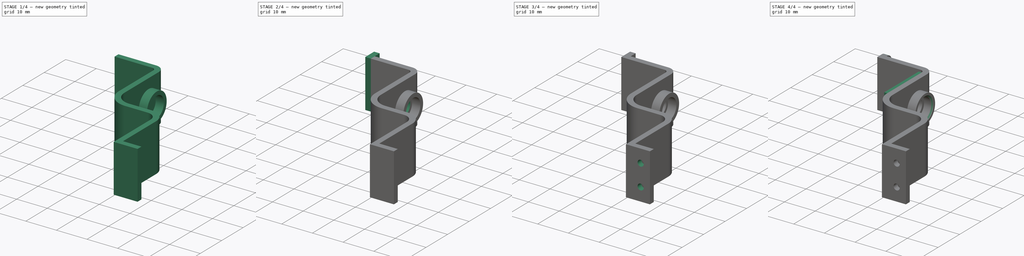
[diagram: build sequence overview — one tinted view per stage of 4, left to right]
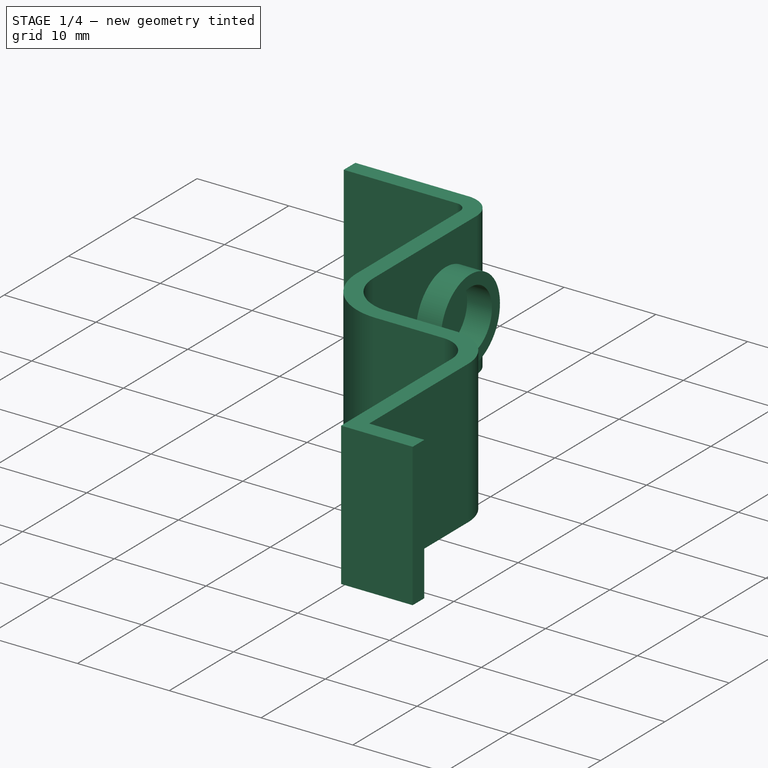
[diagram: stage 1 of 4 — iso view after this stage's code; geometry added in this stage tinted green]
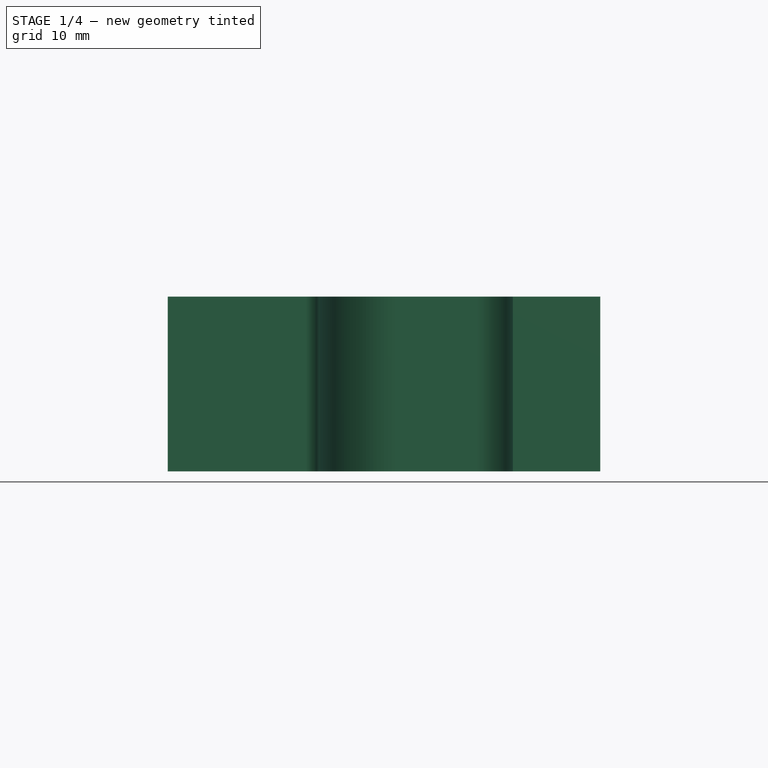
[diagram: stage 1 of 4 — front view after this stage's code; geometry added in this stage tinted green]
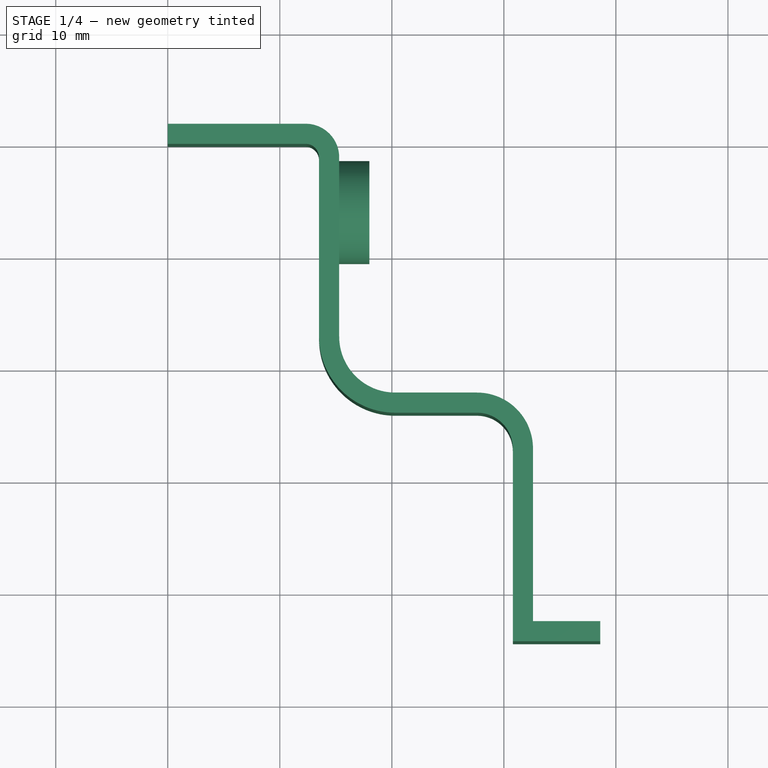
[diagram: stage 1 of 4 — top view after this stage's code; geometry added in this stage tinted green]
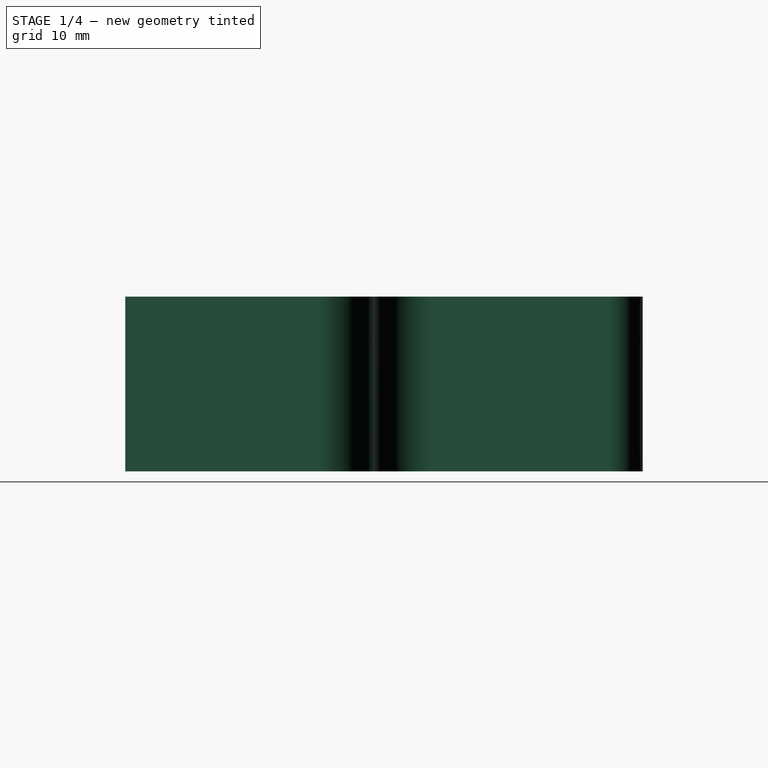
[diagram: stage 1 of 4 — right view after this stage's code; geometry added in this stage tinted green]
FCSTD DOCUMENT  (FreeCAD 0.16R4928 (Git))
Label: bearing_holder
License: All rights reserved
LicenseURL: http://en.wikipedia.org/wiki/All_rights_reserved
objects: Sketcher::SketchObject×9, PartDesign::Pad×5, PartDesign::Pocket×4, PartDesign::Fillet×1, PartDesign::Chamfer×1
note: 29 computed .brp shape members not serialized (recipe doc carries the construction recipe); baked Part::Feature solids carry a one-line shape summary decoded from their .brp

FEATURE [Sketcher::SketchObject] Sketch
  sketch-geometry (18):
    g0: LineSegment StartX=0 StartY=1.8 StartZ=0 EndX=0 EndY=0 EndZ=0
    g1: LineSegment StartX=0 StartY=1.8 StartZ=0 EndX=12.3 EndY=1.8 EndZ=0
    g2: ArcOfCircle CenterX=12.3 CenterY=-1.2 CenterZ=0 NormalX=0 NormalY=0 NormalZ=1 Radius=3 StartAngle=6.28318 EndAngle=7.85398
    g3: LineSegment StartX=15.3 StartY=-1.2 StartZ=0 EndX=15.3 EndY=-17.2 EndZ=0
    g4: LineSegment StartX=0 StartY=0 StartZ=0 EndX=12.3 EndY=0 EndZ=0
    g5: LineSegment StartX=13.5 StartY=-1.2 StartZ=0 EndX=13.5 EndY=-17.2 EndZ=0
    g6: ArcOfCircle CenterX=20.3 CenterY=-17.2 CenterZ=0 NormalX=0 NormalY=0 NormalZ=1 Radius=6.8 StartAngle=3.14159 EndAngle=4.71239
    g7: ArcOfCircle CenterX=20.3 CenterY=-17.2 CenterZ=0 NormalX=0 NormalY=0 NormalZ=1 Radius=5 StartAngle=3.14159 EndAngle=4.71239
    g8: LineSegment StartX=20.3 StartY=-22.2 StartZ=0 EndX=27.6 EndY=-22.2 EndZ=0
    g9: LineSegment StartX=20.3 StartY=-24 StartZ=0 EndX=27.6 EndY=-24 EndZ=0
    g10: ArcOfCircle CenterX=12.3 CenterY=-1.2 CenterZ=0 NormalX=0 NormalY=0 NormalZ=1 Radius=1.2 StartAngle=6.28318 EndAngle=7.85397
    g11: ArcOfCircle CenterX=27.6 CenterY=-27.2 CenterZ=0 NormalX=0 NormalY=0 NormalZ=1 Radius=5 StartAngle=2.952e-09 EndAngle=1.5708
    g12: ArcOfCircle CenterX=27.6 CenterY=-27.2 CenterZ=0 NormalX=0 NormalY=0 NormalZ=1 Radius=3.2 StartAngle=5.9938e-08 EndAngle=1.5708
    g13: LineSegment StartX=30.8 StartY=-27.2 StartZ=0 EndX=30.8 EndY=-44.4 EndZ=0
    g14: LineSegment StartX=32.6 StartY=-27.2 StartZ=0 EndX=32.6 EndY=-42.6 EndZ=0
    g15: LineSegment StartX=30.8 StartY=-44.4 StartZ=0 EndX=38.6 EndY=-44.4 EndZ=0
    g16: LineSegment StartX=32.6 StartY=-42.6 StartZ=0 EndX=38.6 EndY=-42.6 EndZ=0
    g17: LineSegment StartX=38.6 StartY=-42.6 StartZ=0 EndX=38.6 EndY=-44.4 EndZ=0
  constraints (56):
    c: Vertical(g0)
    c: Distance(g0) = 1.8
    c: Coincident(g1,g0)
    c: Horizontal(g1)
    c: Coincident(g2,g1)
    c: Coincident(g3,g2)
    c: Vertical(g3)
    c: Coincident(g4,g0)
    c: Horizontal(g4)
    c: Radius(g2) = 3
    c: Tangent(g2,g1)
    c: Coincident(g0,g-1)
    c: Vertical(g5)
    c: Coincident(g7,g6)
    c: Coincident(g7,g3)
    c: Tangent(g7,g3)
    c: Coincident(g6,g5)
    c: Horizontal(g8)
    c: Coincident(g8,g7)
    c: Coincident(g9,g6)
    c: Horizontal(g9)
    c: Tangent(g5,g6)
    c: Tangent(g3,g2)
    c: Tangent(g7,g8)
    c: Tangent(g6,g9)
    c: Coincident(g10,g4)
    c: Coincident(g10,g5)
    c: Tangent(g10,g5)
    c: Tangent(g4,g10)
    c: DistanceX(g0,g2) = 15.3
    c: DistanceY(g6,g1) = 25.8
    c: Coincident(g10,g2)
    c: Coincident(g11,g8)
    c: Coincident(g12,g11)
    c: Coincident(g12,g9)
    c: Coincident(g13,g12)
    c: Vertical(g14)
    c: Vertical(g13)
    c: Tangent(g12,g13)
    c: Tangent(g11,g14)
    c: Coincident(g14,g11)
    c: Tangent(g9,g12)
    c: Tangent(g11,g8)
    c: DistanceX(g5,g12) = 17.3
    c: Radius(g11) = 5
    c: Coincident(g15,g13)
    c: Horizontal(g15)
    c: Coincident(g16,g14)
    c: Horizontal(g16)
    c: Coincident(g17,g16)
    c: Coincident(g17,g15)
    c: Vertical(g17)
    c: Distance(g15) = 7.8
    c: Equal(g17,g0)
    c: DistanceY(g15,g8) = 22.2
    c: Radius(g7) = 5
FEATURE [PartDesign::Pad] Pad
  Length = 15.6
  Length2 = 100
  Sketch = -> Sketch
  Type = 0
FEATURE [Sketcher::SketchObject] Sketch001
  ExternalGeometry = -> [Pad]
  Placement = pos=(15.3,0,0) rot=(0.57735,0.57735,0.57735;2.0944rad)
  Support = -> Pad [Face2]
  sketch-geometry (4):
    g0: LineSegment [constr] StartX=1.8 StartY=15.6 StartZ=0 EndX=1.8 EndY=7.8 EndZ=0
    g1: LineSegment [constr] StartX=1.8 StartY=7.8 StartZ=0 EndX=1.8 EndY=0 EndZ=0
    g2: LineSegment [constr] StartX=1.8 StartY=7.8 StartZ=0 EndX=-6 EndY=7.8 EndZ=0
    g3: Circle CenterX=-6 CenterY=7.8 CenterZ=0 NormalX=0 NormalY=0 NormalZ=1 Radius=4.6
  constraints (10):
    c: Coincident(g0,g-3)
    c: Vertical(g0)
    c: Coincident(g1,g0)
    c: Coincident(g1,g-4)
    c: Equal(g0,g1)
    c: Coincident(g2,g0)
    c: Horizontal(g2)
    c: Distance(g2) = 7.8
    c: Radius(g3) = 4.6
    c: Coincident(g3,g2)
FEATURE [PartDesign::Pad] Pad001
  Length = 2.7
  Length2 = 100
  Sketch = -> Sketch001
  Type = 0
FEATURE [Sketcher::SketchObject] Sketch002
  ExternalGeometry = -> [Pad001]
  Placement = pos=(18,0,0) rot=(0.57735,0.57735,0.57735;2.0944rad)
  Support = -> Pad001 [Face22]
  sketch-geometry (1):
    g0: Circle CenterX=-6 CenterY=7.8 CenterZ=0 NormalX=0 NormalY=0 NormalZ=1 Radius=3.35
  constraints (2):
    c: Coincident(g0,g-3)
    c: Radius(g0) = 3.35
FEATURE [PartDesign::Pocket] Pocket
  Length = 0
  Sketch = -> Sketch002
  Type = 3
  UpToFace = -> Pad001 [Face2]
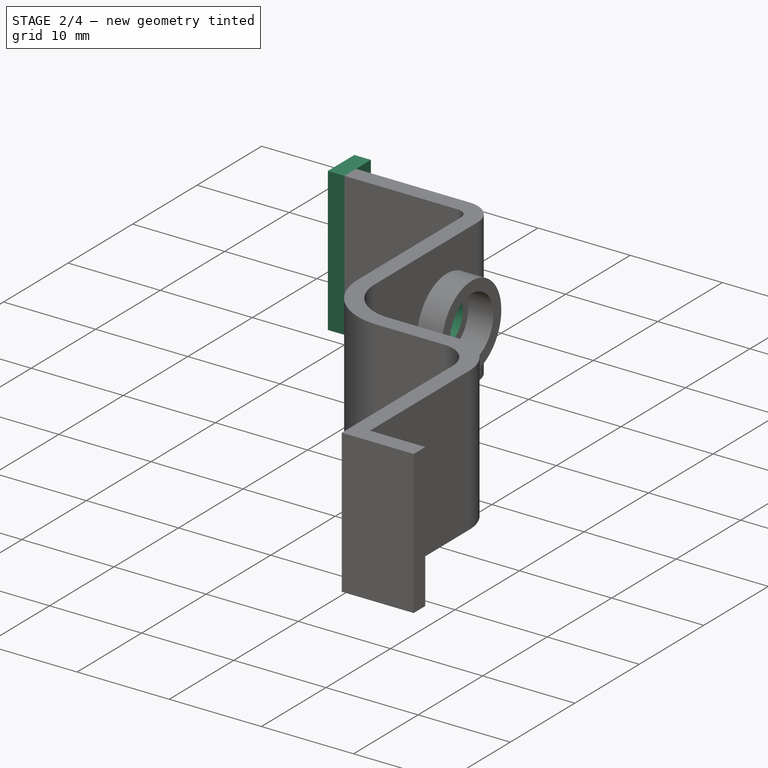
[diagram: stage 2 of 4 — iso view after this stage's code; geometry added in this stage tinted green]
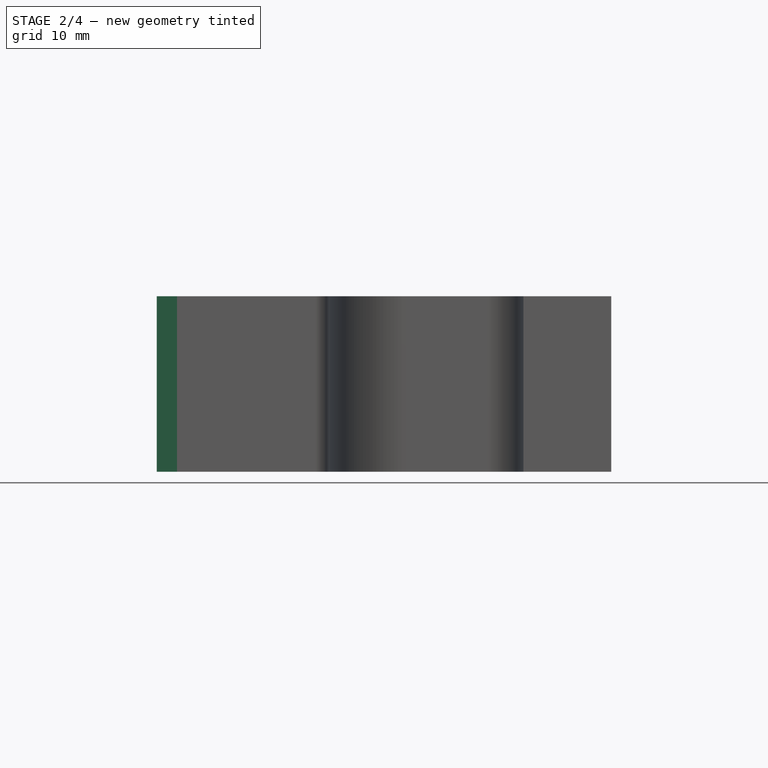
[diagram: stage 2 of 4 — front view after this stage's code; geometry added in this stage tinted green]
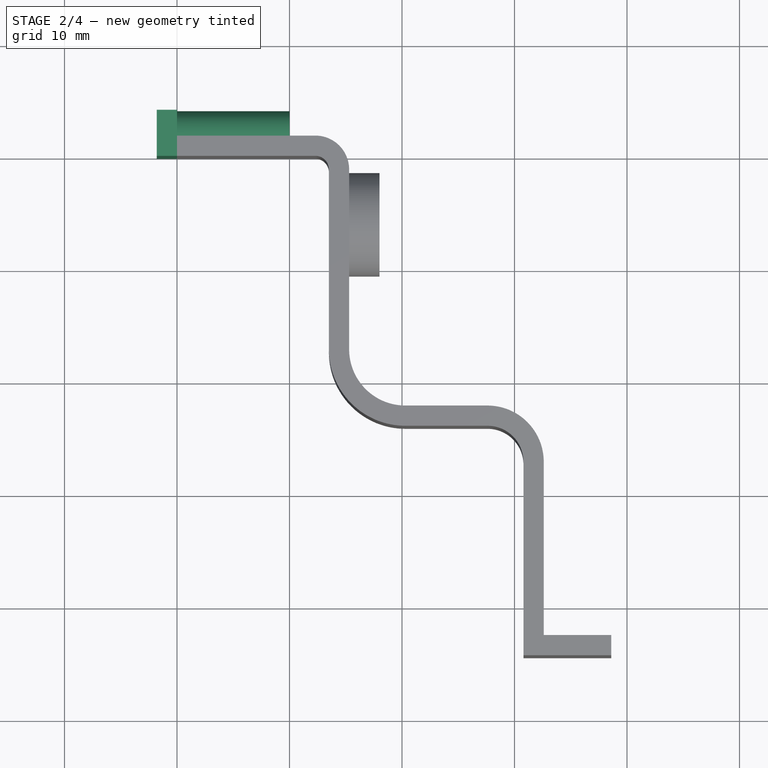
[diagram: stage 2 of 4 — top view after this stage's code; geometry added in this stage tinted green]
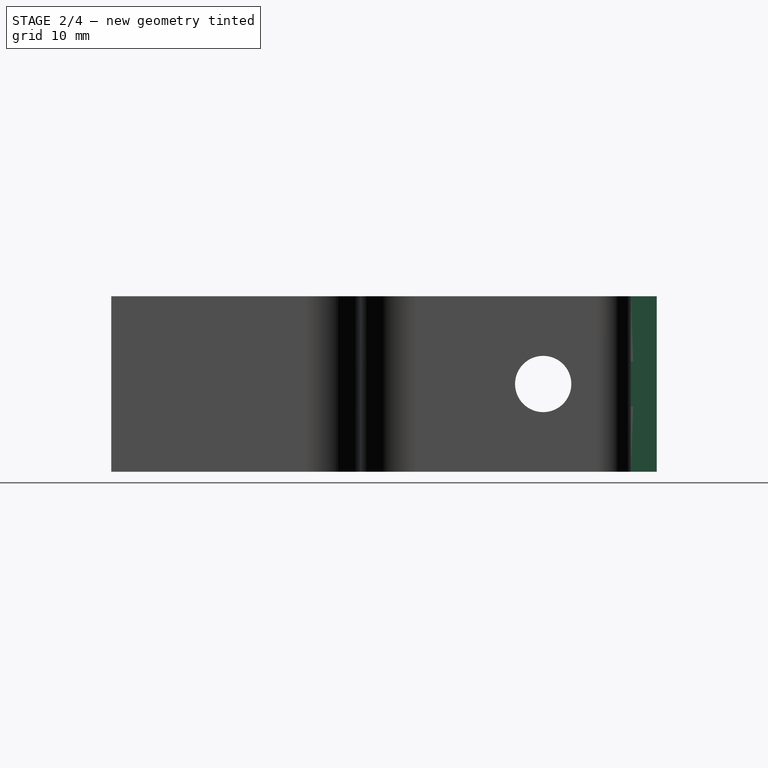
[diagram: stage 2 of 4 — right view after this stage's code; geometry added in this stage tinted green]
FEATURE [Sketcher::SketchObject] Sketch003
  ExternalGeometry = -> [Pocket]
  Placement = pos=(15.3,0,0) rot=(0.57735,0.57735,0.57735;2.0944rad)
  Support = -> Pocket [Face24]
  sketch-geometry (1):
    g0: Circle CenterX=-6 CenterY=7.8 CenterZ=0 NormalX=0 NormalY=0 NormalZ=1 Radius=2.5
  constraints (2):
    c: Coincident(g0,g-3)
    c: Radius(g0) = 2.5
FEATURE [PartDesign::Pocket] Pocket001
  Length = 5
  Sketch = -> Sketch003
  Type = 1
FEATURE [Sketcher::SketchObject] Sketch004
  ExternalGeometry = -> [Pocket001]
  Placement = pos=(0,0,0) rot=(0.57735,-0.57735,-0.57735;2.0944rad)
  Support = -> Pocket001 [Face10]
  sketch-geometry (4):
    g0: LineSegment StartX=0 StartY=0 StartZ=0 EndX=-4.1 EndY=0 EndZ=0
    g1: LineSegment StartX=-4.1 StartY=0 StartZ=0 EndX=-4.1 EndY=15.6 EndZ=0
    g2: LineSegment StartX=-4.1 StartY=15.6 StartZ=0 EndX=0 EndY=15.6 EndZ=0
    g3: LineSegment StartX=0 StartY=15.6 StartZ=0 EndX=0 EndY=0 EndZ=0
  constraints (11):
    c: Coincident(g0,g1)
    c: Coincident(g1,g2)
    c: Coincident(g2,g3)
    c: Coincident(g3,g0)
    c: Horizontal(g0)
    c: Horizontal(g2)
    c: Vertical(g1)
    c: Vertical(g3)
    c: Coincident(g0,g-1)
    c: PointOnObject(g-3,g2)
    c: DistanceX(g1,g2) = 4.1
FEATURE [PartDesign::Pad] Pad002
  Length = 1.8
  Length2 = 100
  Sketch = -> Sketch004
  Type = 0
FEATURE [Sketcher::SketchObject] Sketch005
  ExternalGeometry = -> [Pad002]
  Placement = pos=(0,0,0) rot=(0.57735,0.57735,0.57735;2.0944rad)
  Support = -> Pad002 [Face24]
  sketch-geometry (5):
    g0: LineSegment [constr] StartX=4.1 StartY=15.6 StartZ=0 EndX=4.1 EndY=7.8 EndZ=0
    g1: LineSegment [constr] StartX=4.1 StartY=7.8 StartZ=0 EndX=4.1 EndY=0 EndZ=0
    g2: LineSegment StartX=4.1 StartY=7.8 StartZ=0 EndX=2.1 EndY=7.8 EndZ=0
    g3: ArcOfCircle CenterX=2.1 CenterY=7.8 CenterZ=0 NormalX=0 NormalY=0 NormalZ=1 Radius=2 StartAngle=4.56182 EndAngle=8.00455
    g4: LineSegment StartX=1.8 StartY=5.82263 StartZ=0 EndX=1.8 EndY=9.77737 EndZ=0
  constraints (15):
    c: Coincident(g0,g-3)
    c: Vertical(g0)
    c: Coincident(g1,g-3)
    c: Vertical(g1)
    c: Coincident(g1,g0)
    c: Equal(g0,g1)
    c: Coincident(g2,g0)
    c: Horizontal(g2)
    c: Coincident(g3,g2)
    c: Vertical(g4)
    c: Coincident(g3,g4)
    c: Coincident(g3,g4)
    c: PointOnObject(g3,g-4)
    c: Tangent(g3,g-3)
    c: Radius(g3) = 2
FEATURE [PartDesign::Pad] Pad003
  Length = 10
  Length2 = 100
  Sketch = -> Sketch005
  Type = 0
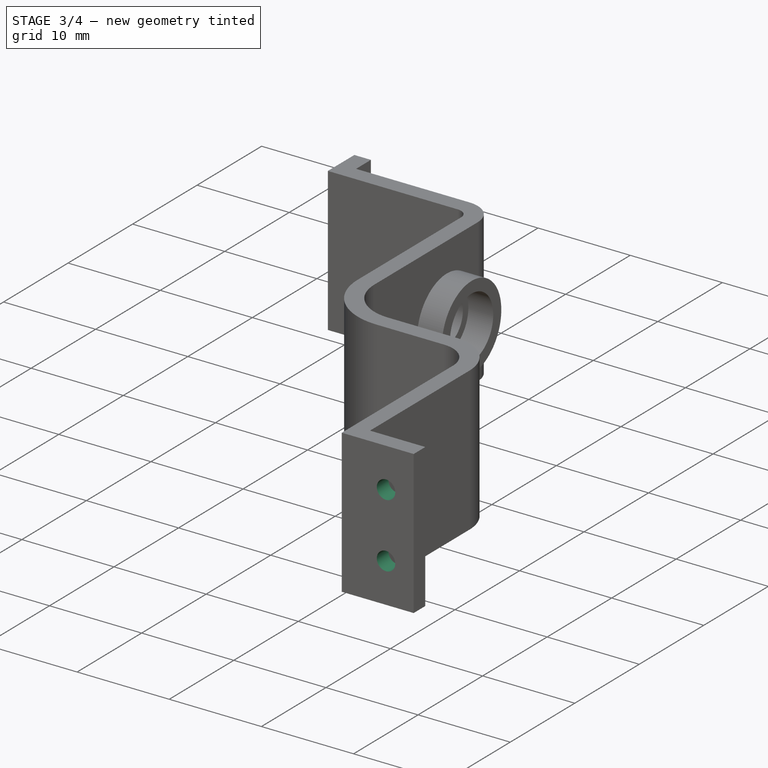
[diagram: stage 3 of 4 — iso view after this stage's code; geometry added in this stage tinted green]
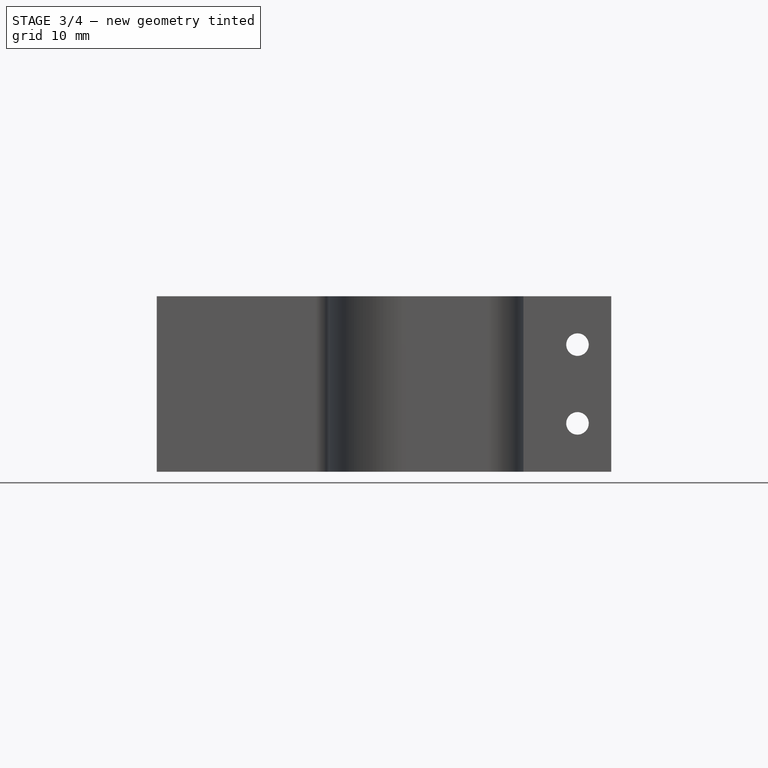
[diagram: stage 3 of 4 — front view after this stage's code; geometry added in this stage tinted green]
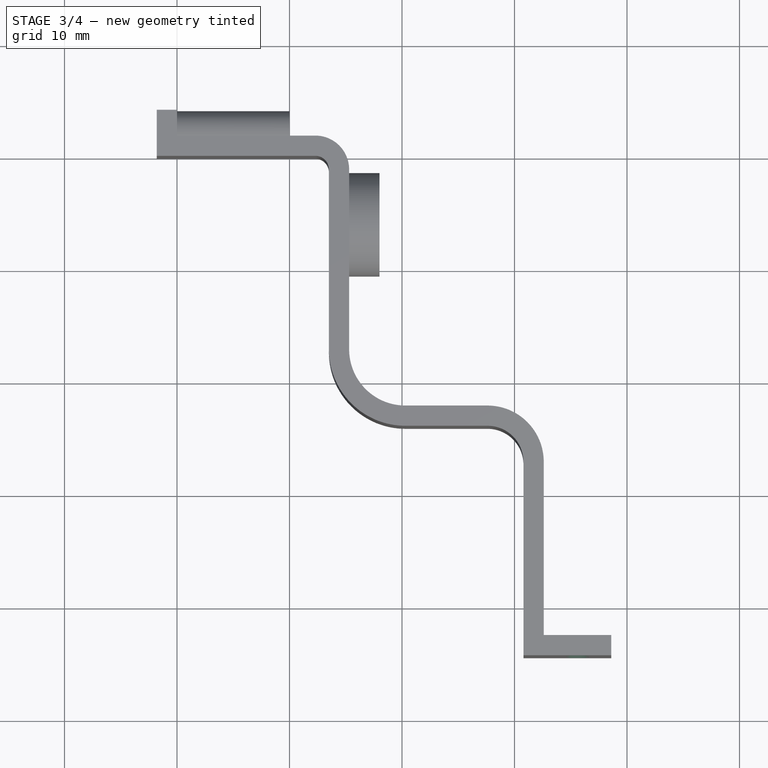
[diagram: stage 3 of 4 — top view after this stage's code; geometry added in this stage tinted green]
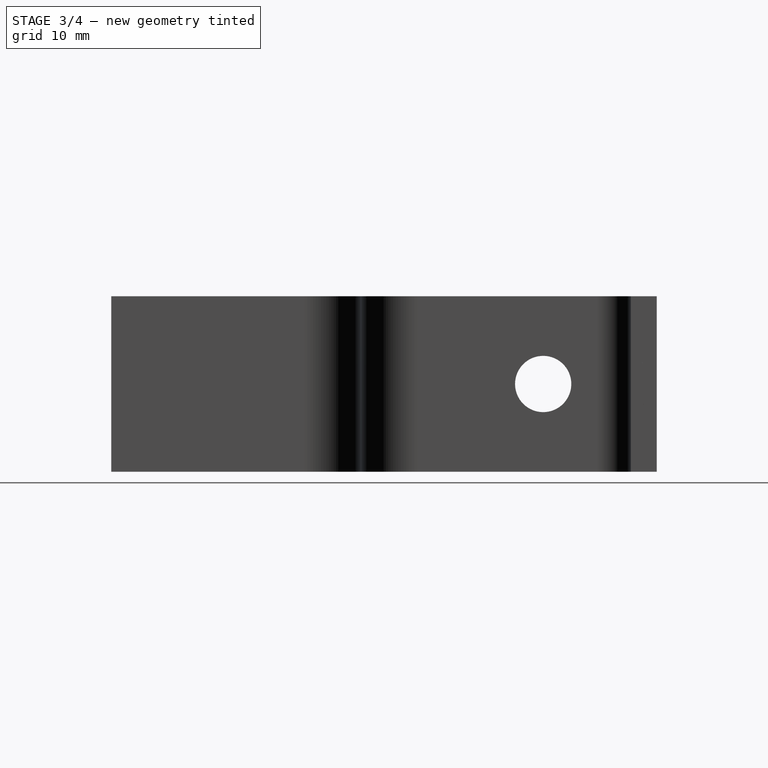
[diagram: stage 3 of 4 — right view after this stage's code; geometry added in this stage tinted green]
FEATURE [Sketcher::SketchObject] Sketch006
  ExternalGeometry = -> [Pad003]
  Placement = pos=(-1.8,0,0) rot=(0.57735,-0.57735,-0.57735;2.0944rad)
  Support = -> Pad003 [Face29]
  sketch-geometry (4):
    g0: LineSegment [constr] StartX=-4.1 StartY=15.6 StartZ=0 EndX=-4.1 EndY=7.8 EndZ=0
    g1: LineSegment [constr] StartX=-4.1 StartY=0 StartZ=0 EndX=-4.1 EndY=7.8 EndZ=0
    g2: LineSegment [constr] StartX=-4.1 StartY=7.8 StartZ=0 EndX=-2 EndY=7.8 EndZ=0
    g3: Circle CenterX=-2 CenterY=7.8 CenterZ=0 NormalX=0 NormalY=0 NormalZ=1 Radius=0.875
  constraints (11):
    c: Vertical(g0)
    c: Coincident(g1,g-4)
    c: Vertical(g1)
    c: Coincident(g1,g0)
    c: Equal(g1,g0)
    c: Coincident(g0,g-3)
    c: Coincident(g2,g0)
    c: Horizontal(g2)
    c: Coincident(g3,g2)
    c: Distance(g2) = 2.1
    c: Radius(g3) = 0.875
FEATURE [PartDesign::Pocket] Pocket002
  Length = 8
  Sketch = -> Sketch006
  Type = 0
FEATURE [Sketcher::SketchObject] Sketch007
  ExternalGeometry = -> [Pocket002]
  Placement = pos=(0,-44.4,0) rot=(1,0,0;1.5708rad)
  Support = -> Pocket002 [Face16]
  sketch-geometry (7):
    g0: LineSegment [constr] StartX=38.6 StartY=7.8 StartZ=0 EndX=35.6 EndY=7.8 EndZ=0
    g1: LineSegment StartX=38.6 StartY=7.8 StartZ=0 EndX=38.6 EndY=15.6 EndZ=0
    g2: LineSegment StartX=38.6 StartY=7.8 StartZ=0 EndX=38.6 EndY=0 EndZ=0
    g3: LineSegment [constr] StartX=35.6 StartY=7.8 StartZ=0 EndX=35.6 EndY=11.3 EndZ=0
    g4: LineSegment [constr] StartX=35.6 StartY=7.8 StartZ=0 EndX=35.6 EndY=4.3 EndZ=0
    g5: Circle CenterX=35.6 CenterY=11.3 CenterZ=0 NormalX=0 NormalY=0 NormalZ=1 Radius=1
    g6: Circle CenterX=35.6 CenterY=4.3 CenterZ=0 NormalX=0 NormalY=0 NormalZ=1 Radius=1
  constraints (19):
    c: Horizontal(g0)
    c: Coincident(g1,g0)
    c: Coincident(g1,g-3)
    c: Vertical(g1)
    c: Coincident(g2,g0)
    c: Coincident(g2,g-4)
    c: Equal(g2,g1)
    c: Coincident(g3,g0)
    c: Vertical(g3)
    c: Coincident(g4,g0)
    c: Vertical(g4)
    c: Equal(g4,g3)
    c: Coincident(g5,g3)
    c: Coincident(g6,g4)
    c: Equal(g6,g5)
    c: Equal(g3,g4)
    c: DistanceX(g0) = -3
    c: DistanceY(g3,g4) = -7
    c: Radius(g5) = 1
FEATURE [PartDesign::Pocket] Pocket003
  Length = 5
  Sketch = -> Sketch007
  Type = 1
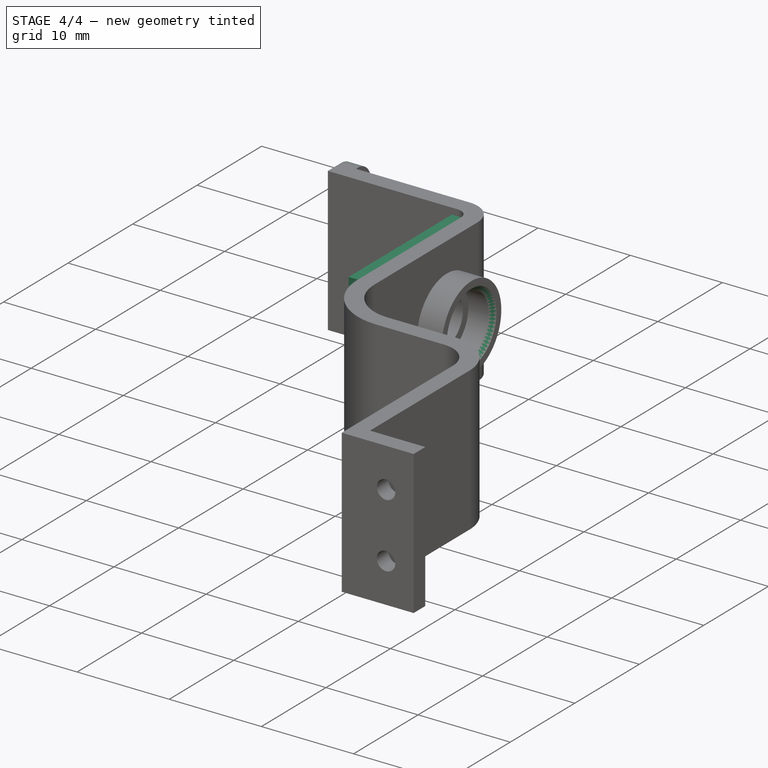
[diagram: stage 4 of 4 — iso view after this stage's code; geometry added in this stage tinted green]
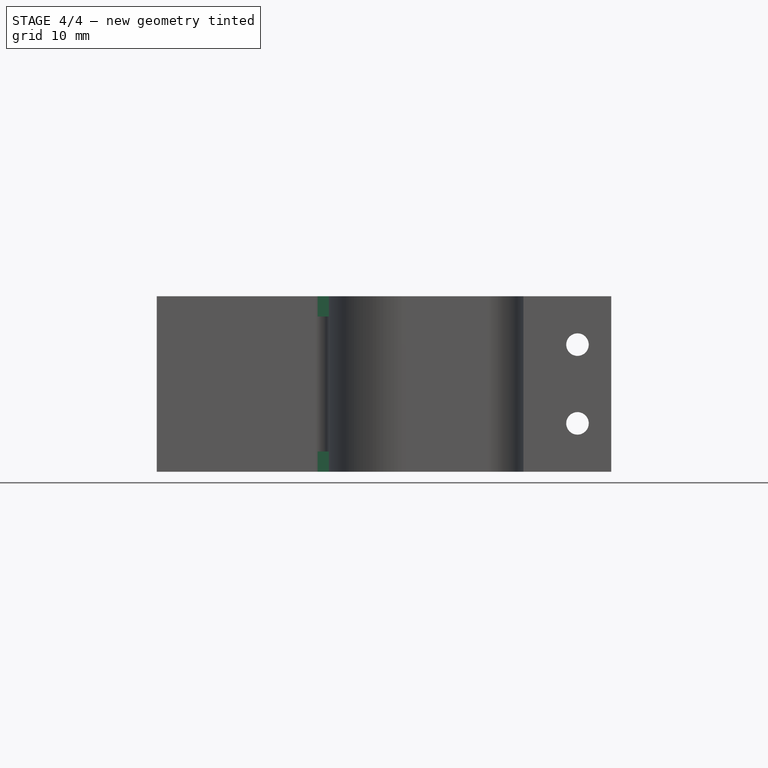
[diagram: stage 4 of 4 — front view after this stage's code; geometry added in this stage tinted green]
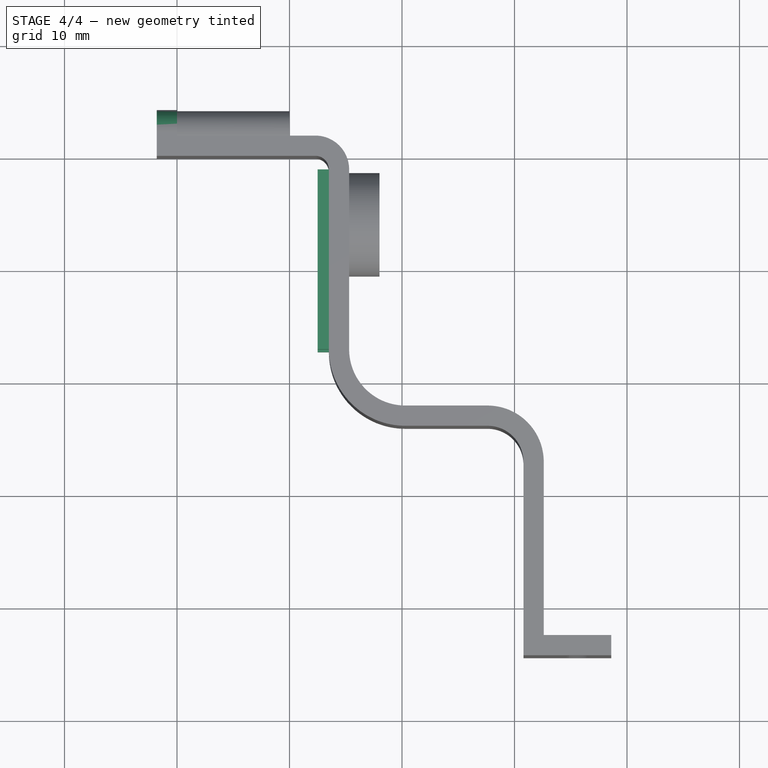
[diagram: stage 4 of 4 — top view after this stage's code; geometry added in this stage tinted green]
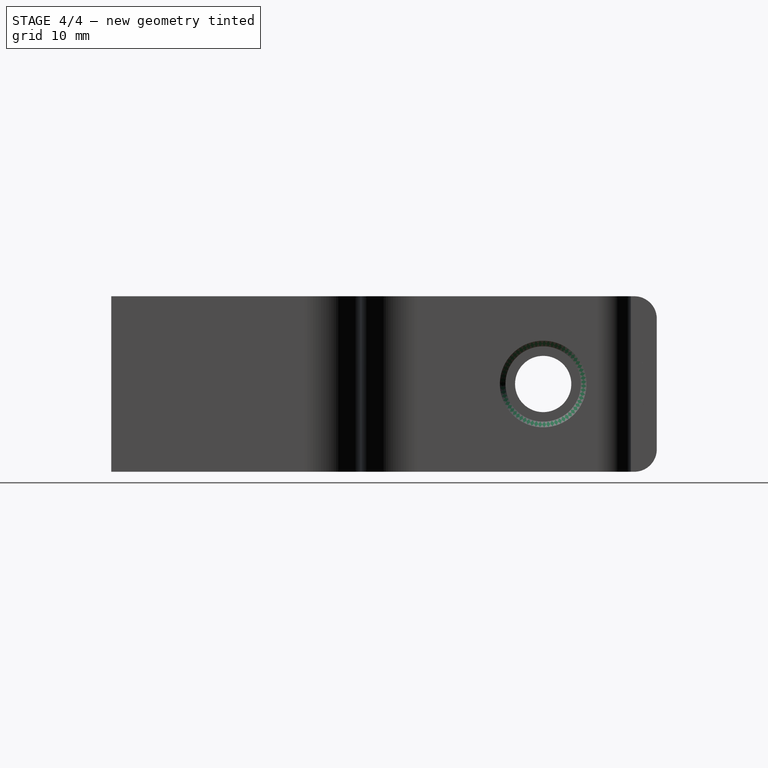
[diagram: stage 4 of 4 — right view after this stage's code; geometry added in this stage tinted green]
FEATURE [PartDesign::Fillet] Fillet
  Base = -> Pocket003 [Edge55,Edge71]
  Radius = 2
FEATURE [PartDesign::Chamfer] Chamfer
  Base = -> Fillet [Edge95]
  Size = 0.5
FEATURE [Sketcher::SketchObject] Sketch008
  ExternalGeometry = -> [Chamfer]
  Placement = pos=(13.5,0,0) rot=(0.57735,-0.57735,-0.57735;2.0944rad)
  Support = -> Chamfer [Face22]
  sketch-geometry (8):
    g0: LineSegment StartX=1.2 StartY=15.6 StartZ=0 EndX=17.2 EndY=15.6 EndZ=0
    g1: LineSegment StartX=17.2 StartY=15.6 StartZ=0 EndX=17.2 EndY=13.8 EndZ=0
    g2: LineSegment StartX=17.2 StartY=13.8 StartZ=0 EndX=1.2 EndY=13.8 EndZ=0
    g3: LineSegment StartX=1.2 StartY=13.8 StartZ=0 EndX=1.2 EndY=15.6 EndZ=0
    g4: LineSegment StartX=1.2 StartY=0 StartZ=0 EndX=17.2 EndY=0 EndZ=0
    g5: LineSegment StartX=17.2 StartY=0 StartZ=0 EndX=17.2 EndY=1.8 EndZ=0
    g6: LineSegment StartX=17.2 StartY=1.8 StartZ=0 EndX=1.2 EndY=1.8 EndZ=0
    g7: LineSegment StartX=1.2 StartY=1.8 StartZ=0 EndX=1.2 EndY=0 EndZ=0
  constraints (22):
    c: Coincident(g0,g1)
    c: Coincident(g1,g2)
    c: Coincident(g2,g3)
    c: Coincident(g3,g0)
    c: Horizontal(g0)
    c: Horizontal(g2)
    c: Vertical(g1)
    c: Vertical(g3)
    c: Coincident(g0,g-3)
    c: Coincident(g4,g5)
    c: Coincident(g5,g6)
    c: Coincident(g6,g7)
    c: Coincident(g7,g4)
    c: Horizontal(g4)
    c: Horizontal(g6)
    c: Vertical(g5)
    c: Vertical(g7)
    c: Coincident(g4,g-3)
    c: Equal(g5,g1)
    c: Equal(g6,g2)
    c: Distance(g1) = 1.8
    c: PointOnObject(g1,g-4)
FEATURE [PartDesign::Pad] Pad004
  Length = 1
  Length2 = 100
  Sketch = -> Sketch008
  Type = 0
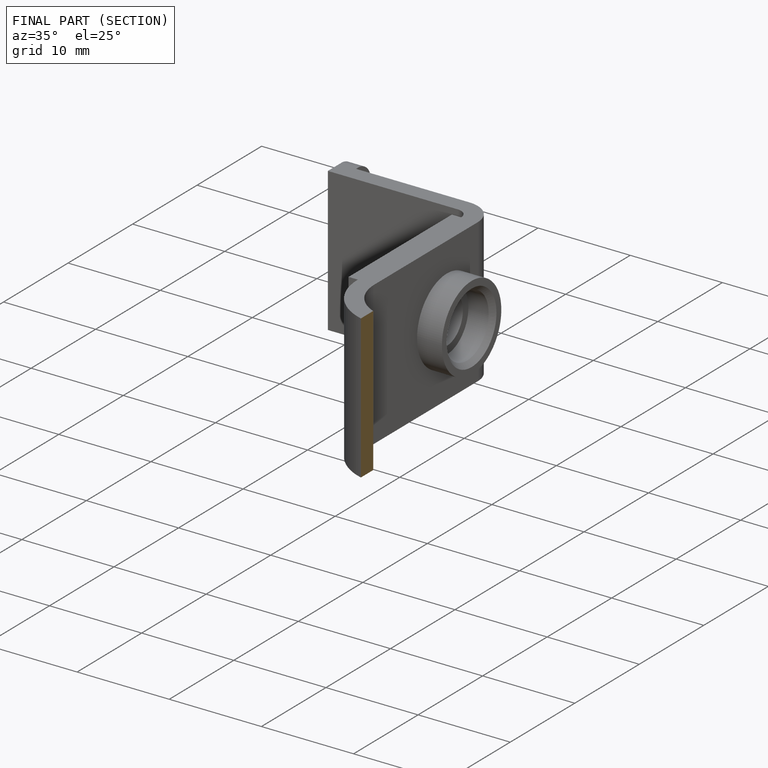
[diagram: finished part — half-section view (interior)]
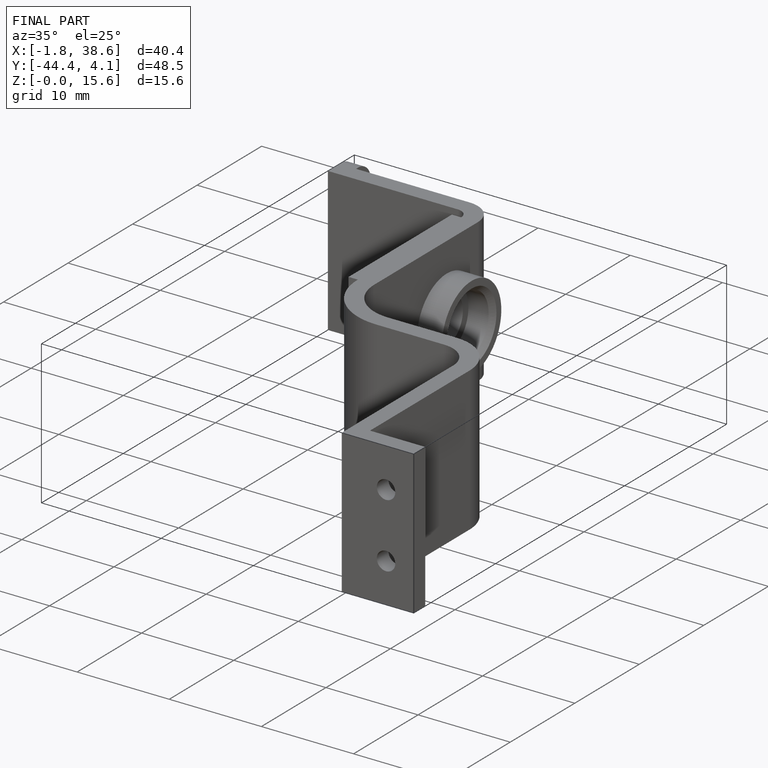
[diagram: finished part — iso view with bounding-box wireframe]
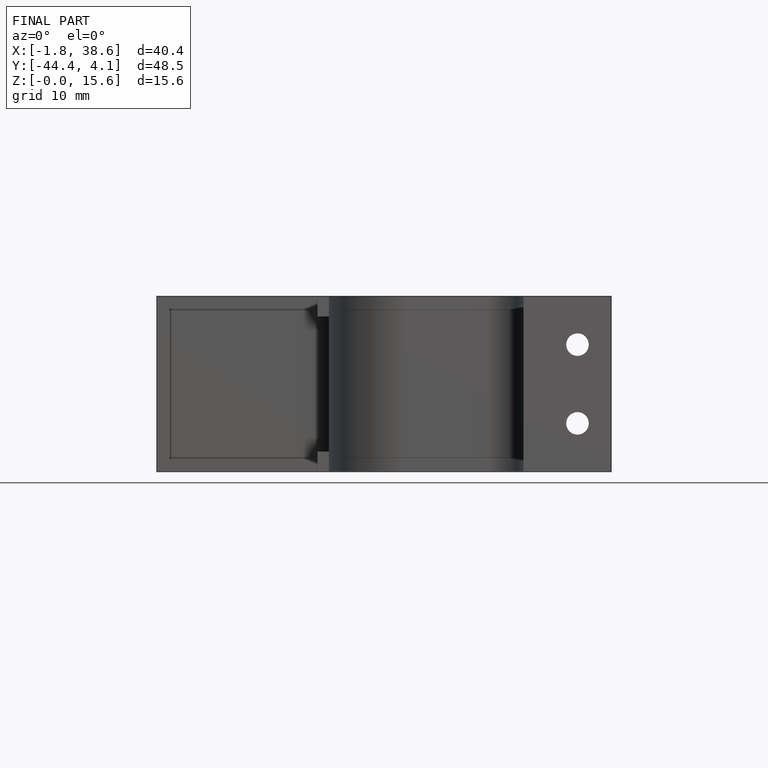
[diagram: finished part — front view with bounding-box wireframe]
